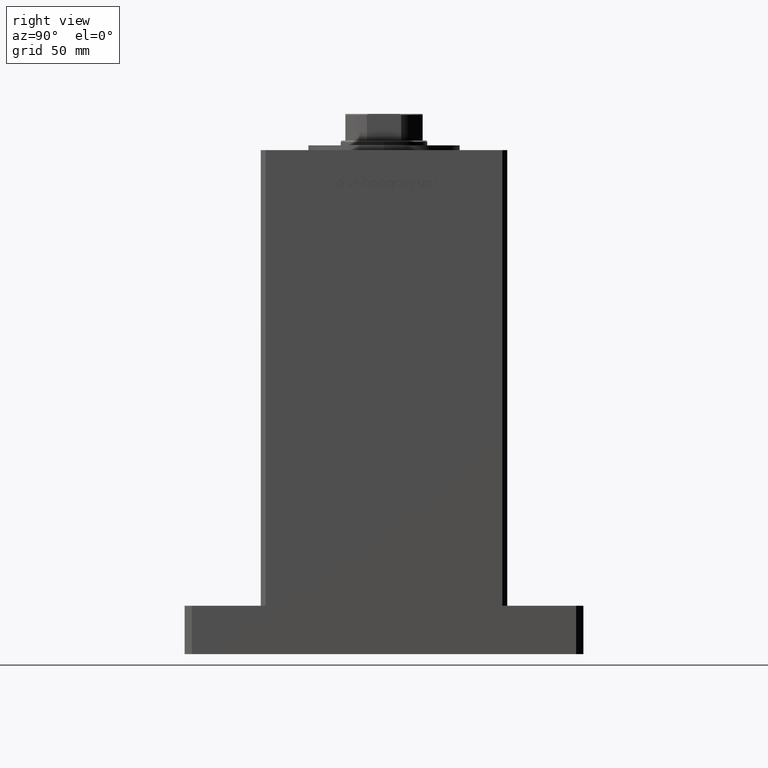
[diagram: clean part render]
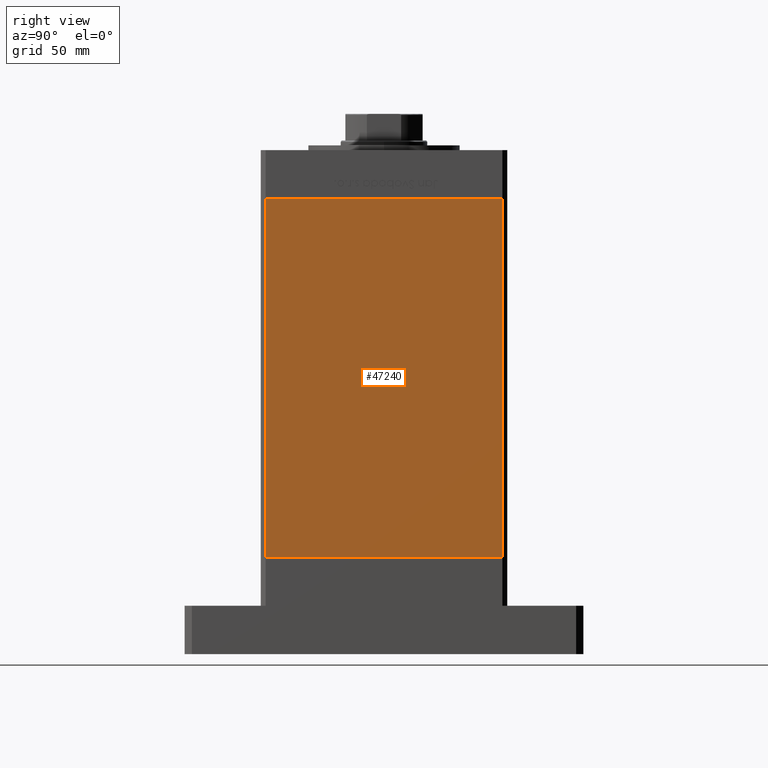
[diagram: same view with one face highlighted and labeled with its STEP entity id]
A machine part, right view. The second image highlights one B-rep face of the part: STEP entity #47240.
In plain terms, the highlighted planar face has unit normal (1, -0, 0).
Its self-contained STEP definition (entity closure, byte-faithful):
#815 = EDGE_CURVE ( 'NONE', #44325, #12023, #12793, .T. ) ;
#1382 = CARTESIAN_POINT ( 'NONE',  ( 59.99999999999998579, -49.00000000000000000, 0.000000000000000000 ) ) ;
#4977 = ORIENTED_EDGE ( 'NONE', *, *, #22334, .F. ) ;
#5754 = VECTOR ( 'NONE', #18911, 1000.000000000000000 ) ;
#6617 = LINE ( 'NONE', #47859, #29311 ) ;
#7000 = VERTEX_POINT ( 'NONE', #31548 ) ;
#7695 = FACE_OUTER_BOUND ( 'NONE', #36136, .T. ) ;
#8293 = LINE ( 'NONE', #28281, #48877 ) ;
#10019 = AXIS2_PLACEMENT_3D ( 'NONE', #40575, #42160, #33024 ) ;
#12023 = VERTEX_POINT ( 'NONE', #1382 ) ;
#12501 = ORIENTED_EDGE ( 'NONE', *, *, #52911, .T. ) ;
#12793 = LINE ( 'NONE', #33820, #5754 ) ;
#16159 = ORIENTED_EDGE ( 'NONE', *, *, #815, .T. ) ;
#18911 = DIRECTION ( 'NONE',  ( -0.000000000000000000, -0.000000000000000000, -1.000000000000000000 ) ) ;
#22334 = EDGE_CURVE ( 'NONE', #7000, #12023, #6617, .T. ) ;
#23142 = CARTESIAN_POINT ( 'NONE',  ( 60.00000000000001421, 49.00000000000000000, 148.5000000000000000 ) ) ;
#24136 = PLANE ( 'NONE',  #10019 ) ;
#24619 = CARTESIAN_POINT ( 'NONE',  ( 60.00000000000001421, 49.00000000000000000, 148.5000000000000000 ) ) ;
#26489 = VECTOR ( 'NONE', #39578, 1000.000000000000000 ) ;
#28281 = CARTESIAN_POINT ( 'NONE',  ( 60.00000000000001421, 49.00000000000000000, 148.5000000000000000 ) ) ;
#29311 = VECTOR ( 'NONE', #31706, 1000.000000000000000 ) ;
#31548 = CARTESIAN_POINT ( 'NONE',  ( 60.00000000000001421, 49.00000000000000000, 0.000000000000000000 ) ) ;
#31706 = DIRECTION ( 'NONE',  ( -2.832201593431521726E-16, -1.000000000000000000, 0.000000000000000000 ) ) ;
#33024 = DIRECTION ( 'NONE',  ( 2.832201593431521726E-16, 1.000000000000000000, 0.000000000000000000 ) ) ;
#33820 = CARTESIAN_POINT ( 'NONE',  ( 59.99999999999998579, -49.00000000000000000, 148.5000000000000000 ) ) ;
#35835 = DIRECTION ( 'NONE',  ( -2.832201593431521726E-16, -1.000000000000000000, 0.000000000000000000 ) ) ;
#35938 = VERTEX_POINT ( 'NONE', #24619 ) ;
#36136 = EDGE_LOOP ( 'NONE', ( #4977, #38676, #12501, #16159 ) ) ;
#38676 = ORIENTED_EDGE ( 'NONE', *, *, #51116, .F. ) ;
#39578 = DIRECTION ( 'NONE',  ( -0.000000000000000000, -0.000000000000000000, -1.000000000000000000 ) ) ;
#40575 = CARTESIAN_POINT ( 'NONE',  ( 60.00000000000001421, 49.00000000000000000, 148.5000000000000000 ) ) ;
#42160 = DIRECTION ( 'NONE',  ( 1.000000000000000000, -2.832201593431521726E-16, 0.000000000000000000 ) ) ;
#43612 = LINE ( 'NONE', #23142, #26489 ) ;
#44325 = VERTEX_POINT ( 'NONE', #53100 ) ;
#47240 = ADVANCED_FACE ( 'NONE', ( #7695 ), #24136, .T. ) ;
#47859 = CARTESIAN_POINT ( 'NONE',  ( 60.00000000000001421, 49.00000000000000000, 0.000000000000000000 ) ) ;
#48877 = VECTOR ( 'NONE', #35835, 1000.000000000000000 ) ;
#51116 = EDGE_CURVE ( 'NONE', #35938, #7000, #43612, .T. ) ;
#52911 = EDGE_CURVE ( 'NONE', #35938, #44325, #8293, .T. ) ;
#53100 = CARTESIAN_POINT ( 'NONE',  ( 59.99999999999998579, -49.00000000000000000, 148.5000000000000000 ) ) ;